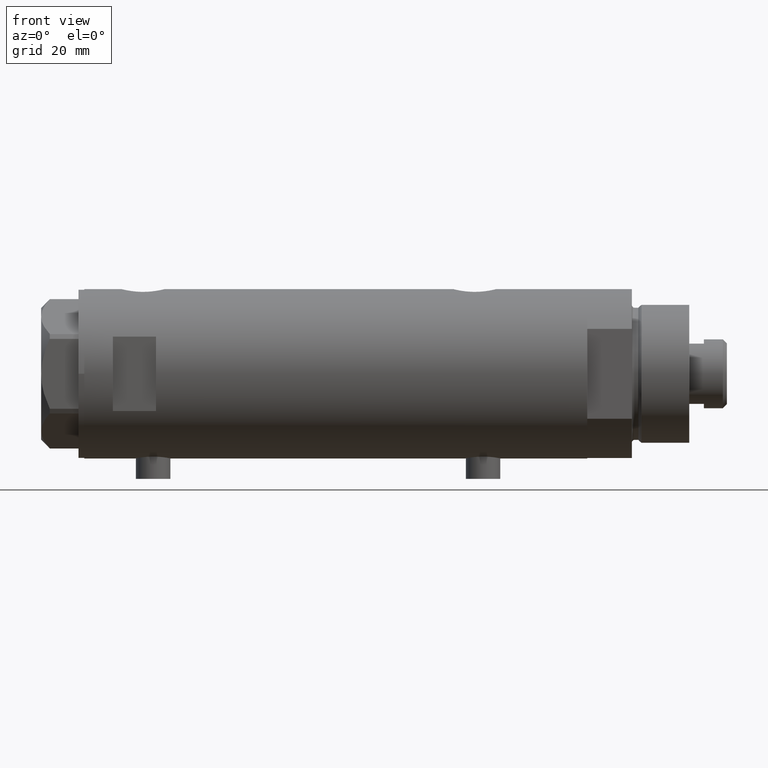
[diagram: clean part render]
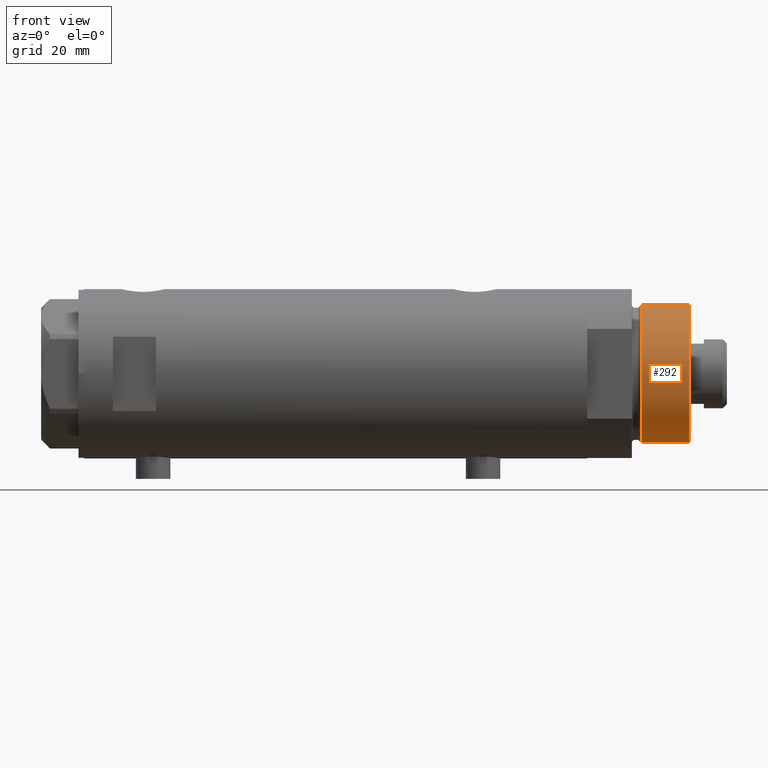
[diagram: same view with one face highlighted and labeled with its STEP entity id]
A machine part, front view. The second image highlights one B-rep face of the part: STEP entity #292.
In plain terms, the highlighted cylindrical surface (partial cylindrical patch) has radius 24 mm, axis along (-1, -0, 0).
Its self-contained STEP definition (entity closure, byte-faithful):
#22 = VERTEX_POINT ( 'NONE', #2710 ) ;
#260 = FACE_OUTER_BOUND ( 'NONE', #2933, .T. ) ;
#273 = DIRECTION ( 'NONE',  ( 1.000000000000000000, 0.000000000000000000, 0.000000000000000000 ) ) ;
#292 = ADVANCED_FACE ( 'NONE', ( #260 ), #1552, .T. ) ;
#325 = CARTESIAN_POINT ( 'NONE',  ( 0.000000000000000000, 0.000000000000000000, 35.50000000000000711 ) ) ;
#457 = CARTESIAN_POINT ( 'NONE',  ( -24.00000000000000355, 0.000000000000000000, 35.50000000000000711 ) ) ;
#458 = ORIENTED_EDGE ( 'NONE', *, *, #3408, .F. ) ;
#510 = VECTOR ( 'NONE', #1121, 1000.000000000000000 ) ;
#606 = AXIS2_PLACEMENT_3D ( 'NONE', #325, #4703, #273 ) ;
#741 = VERTEX_POINT ( 'NONE', #457 ) ;
#749 = CIRCLE ( 'NONE', #606, 24.00000000000000355 ) ;
#1121 = DIRECTION ( 'NONE',  ( -0.000000000000000000, -0.000000000000000000, -1.000000000000000000 ) ) ;
#1127 = CARTESIAN_POINT ( 'NONE',  ( 24.00000000000000355, 2.939152317953648289E-15, 35.50000000000000711 ) ) ;
#1324 = EDGE_CURVE ( 'NONE', #741, #22, #3739, .T. ) ;
#1482 = LINE ( 'NONE', #4013, #3860 ) ;
#1552 = CYLINDRICAL_SURFACE ( 'NONE', #1988, 24.00000000000000355 ) ;
#1577 = DIRECTION ( 'NONE',  ( -0.000000000000000000, -0.000000000000000000, -1.000000000000000000 ) ) ;
#1869 = CARTESIAN_POINT ( 'NONE',  ( -24.00000000000000355, 0.000000000000000000, 35.50000000000000711 ) ) ;
#1919 = CIRCLE ( 'NONE', #2004, 24.00000000000000355 ) ;
#1988 = AXIS2_PLACEMENT_3D ( 'NONE', #2665, #1577, #3427 ) ;
#2004 = AXIS2_PLACEMENT_3D ( 'NONE', #2355, #3036, #4252 ) ;
#2041 = VERTEX_POINT ( 'NONE', #1127 ) ;
#2355 = CARTESIAN_POINT ( 'NONE',  ( 0.000000000000000000, 0.000000000000000000, 18.87384048104054202 ) ) ;
#2665 = CARTESIAN_POINT ( 'NONE',  ( 0.000000000000000000, 0.000000000000000000, 35.50000000000000711 ) ) ;
#2710 = CARTESIAN_POINT ( 'NONE',  ( -24.00000000000000355, 0.000000000000000000, 18.87384048104054202 ) ) ;
#2829 = ORIENTED_EDGE ( 'NONE', *, *, #4173, .T. ) ;
#2870 = EDGE_CURVE ( 'NONE', #741, #2041, #749, .T. ) ;
#2933 = EDGE_LOOP ( 'NONE', ( #458, #3398, #3449, #2829 ) ) ;
#3036 = DIRECTION ( 'NONE',  ( -0.000000000000000000, -0.000000000000000000, 1.000000000000000000 ) ) ;
#3247 = VERTEX_POINT ( 'NONE', #3918 ) ;
#3398 = ORIENTED_EDGE ( 'NONE', *, *, #2870, .F. ) ;
#3408 = EDGE_CURVE ( 'NONE', #2041, #3247, #1482, .T. ) ;
#3427 = DIRECTION ( 'NONE',  ( -1.000000000000000000, 0.000000000000000000, 0.000000000000000000 ) ) ;
#3449 = ORIENTED_EDGE ( 'NONE', *, *, #1324, .T. ) ;
#3606 = DIRECTION ( 'NONE',  ( -0.000000000000000000, -0.000000000000000000, -1.000000000000000000 ) ) ;
#3739 = LINE ( 'NONE', #1869, #510 ) ;
#3860 = VECTOR ( 'NONE', #3606, 1000.000000000000000 ) ;
#3918 = CARTESIAN_POINT ( 'NONE',  ( 24.00000000000000355, 2.939152317953648289E-15, 18.87384048104054202 ) ) ;
#4013 = CARTESIAN_POINT ( 'NONE',  ( 24.00000000000000355, 2.939152317953648289E-15, 35.50000000000000711 ) ) ;
#4173 = EDGE_CURVE ( 'NONE', #22, #3247, #1919, .T. ) ;
#4252 = DIRECTION ( 'NONE',  ( 1.000000000000000000, 0.000000000000000000, 0.000000000000000000 ) ) ;
#4703 = DIRECTION ( 'NONE',  ( 0.000000000000000000, 0.000000000000000000, 1.000000000000000000 ) ) ;